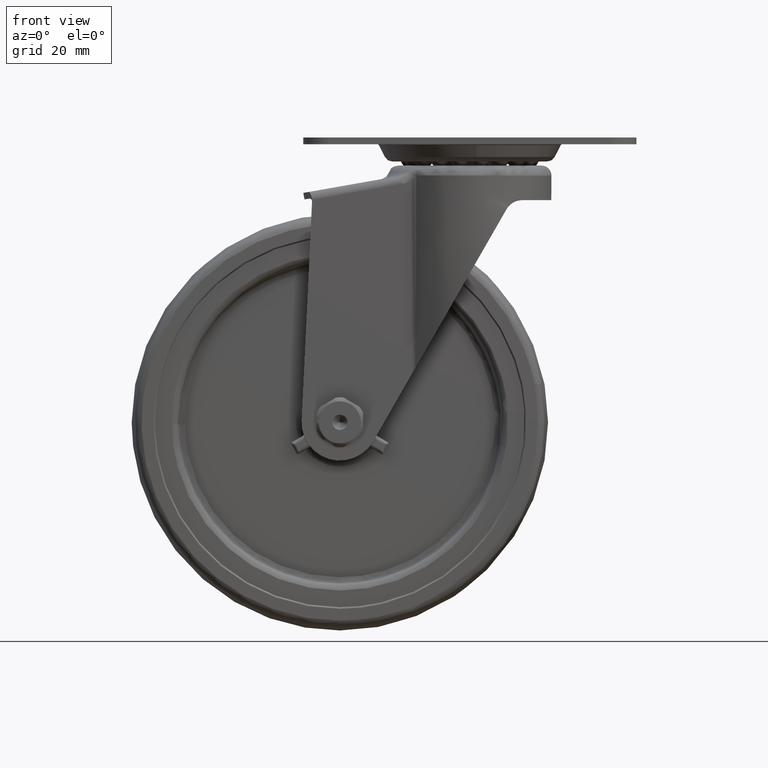
[diagram: clean part render]
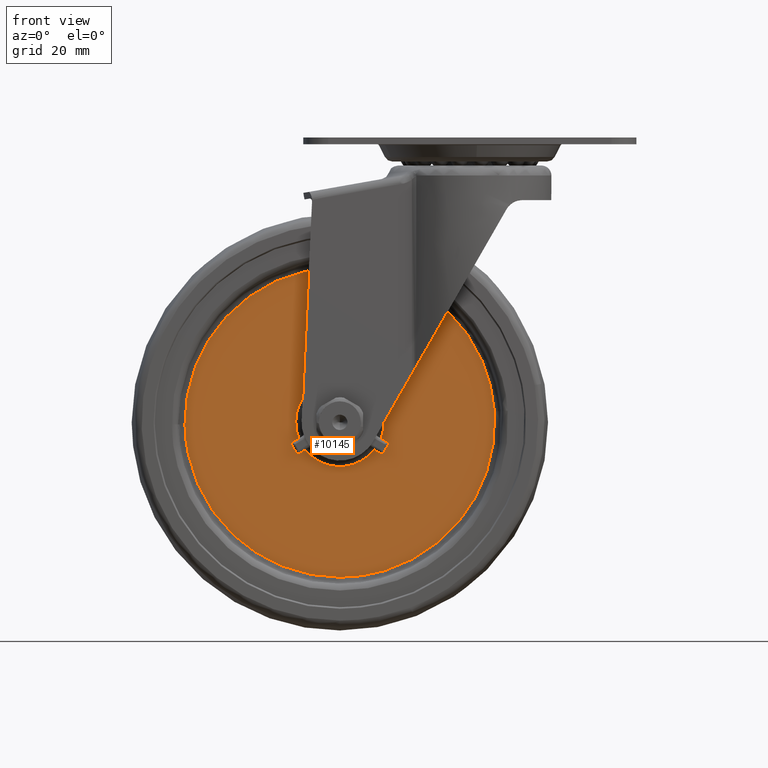
[diagram: same view with one face highlighted and labeled with its STEP entity id]
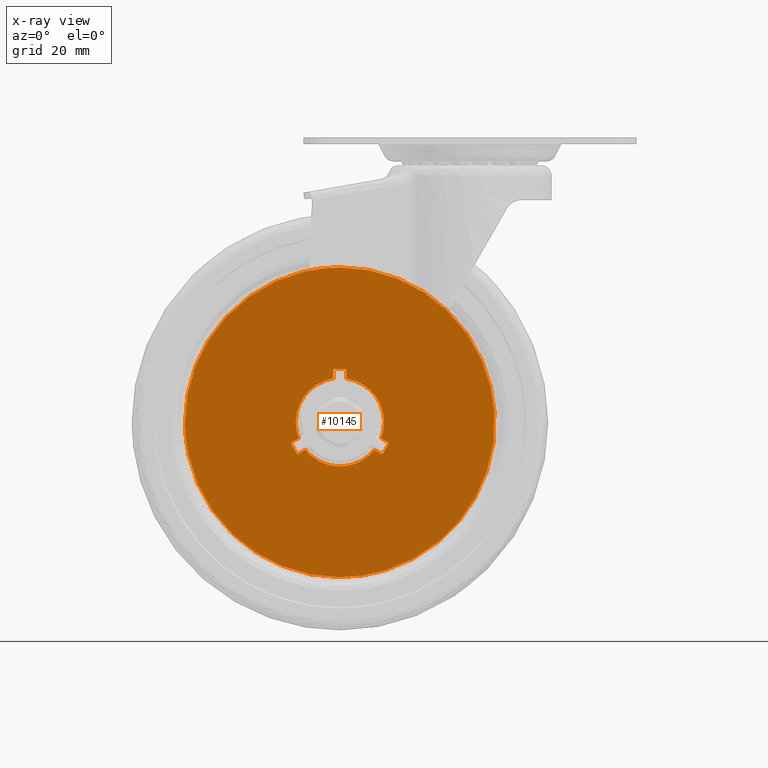
[diagram: x-ray of the same camera — body ghosted, the highlighted face saturated]
A machine part, front view. The second image highlights one B-rep face of the part: STEP entity #10145.
The next image is the same camera in x-ray: the body ghosted, the highlighted face saturated — about 0% of this face is hidden behind the body in this view.
In plain terms, the highlighted face is a freeform B-spline surface patch.
Its self-contained STEP definition (entity closure, byte-faithful):
#3296=CARTESIAN_POINT('',(7.386803875285509,-7.500000000000002,-80.257403797954339));
#3297=VERTEX_POINT('',#3296);
#3311=CARTESIAN_POINT('',(-39.0,-7.500000000000000,-130.0));
#3312=VERTEX_POINT('',#3311);
#3313=CARTESIAN_POINT('',(7.386803875285509,-7.500000000000002,-80.257403797954339));
#3314=CARTESIAN_POINT('',(7.500000000000000,-7.500000000000000,-81.876726110954721));
#3315=CARTESIAN_POINT('',(7.500000000000000,-7.500000000000000,-83.500000000000000));
#3316=CARTESIAN_POINT('',(7.500000000000000,-7.500000000000000,-130.0));
#3317=CARTESIAN_POINT('',(-39.0,-7.500000000000000,-130.0));
#3325=(BOUNDED_CURVE()B_SPLINE_CURVE(2,(#3313,#3314,#3315,#3316,#3317),.UNSPECIFIED.,.F.,.U.)B_SPLINE_CURVE_WITH_KNOTS((3,2,3),(0.237833686528698,0.250000000000000,0.500000000000000),.UNSPECIFIED.)CURVE()GEOMETRIC_REPRESENTATION_ITEM()RATIONAL_B_SPLINE_CURVE((0.972879876373453,0.985746277145188,1.0,0.707106781186547,1.0))REPRESENTATION_ITEM(''));
#3326=EDGE_CURVE('',#3297,#3312,#3325,.T.);
#3328=CARTESIAN_POINT('',(-85.496328603381443,-7.500000000000002,-84.084320856327707));
#3329=VERTEX_POINT('',#3328);
#3330=CARTESIAN_POINT('',(-39.0,-7.500000000000000,-130.0));
#3331=CARTESIAN_POINT('',(-84.919304738419228,-7.500000000000000,-130.0));
#3332=CARTESIAN_POINT('',(-85.496328603381443,-7.500000000000002,-84.084320856327707));
#3340=(BOUNDED_CURVE()B_SPLINE_CURVE(2,(#3330,#3331,#3332),.UNSPECIFIED.,.F.,.U.)B_SPLINE_CURVE_WITH_KNOTS((3,3),(0.500000000000000,0.747784295913032),.UNSPECIFIED.)CURVE()GEOMETRIC_REPRESENTATION_ITEM()RATIONAL_B_SPLINE_CURVE((1.0,0.709702639994429,0.994854295623996))REPRESENTATION_ITEM(''));
#3341=EDGE_CURVE('',#3312,#3329,#3340,.T.);
#3388=CARTESIAN_POINT('',(-39.0,-7.500000000000000,-37.000000000000007));
#3389=VERTEX_POINT('',#3388);
#3390=CARTESIAN_POINT('',(-85.496328603381443,-7.500000000000002,-84.084320856327707));
#3391=CARTESIAN_POINT('',(-85.499999999999986,-7.500000000000000,-83.792171962772613));
#3392=CARTESIAN_POINT('',(-85.499999999999986,-7.500000000000000,-83.500000000000000));
#3393=CARTESIAN_POINT('',(-85.499999999999986,-7.500000000000000,-37.000000000000007));
#3394=CARTESIAN_POINT('',(-39.0,-7.500000000000000,-37.000000000000007));
#3402=(BOUNDED_CURVE()B_SPLINE_CURVE(2,(#3390,#3391,#3392,#3393,#3394),.UNSPECIFIED.,.F.,.U.)B_SPLINE_CURVE_WITH_KNOTS((3,2,3),(0.747784295913032,0.750000000000000,1.0),.UNSPECIFIED.)CURVE()GEOMETRIC_REPRESENTATION_ITEM()RATIONAL_B_SPLINE_CURVE((0.994854295623996,0.997404141192119,1.0,0.707106781186547,1.0))REPRESENTATION_ITEM(''));
#3403=EDGE_CURVE('',#3329,#3389,#3402,.T.);
#3405=CARTESIAN_POINT('',(-39.0,-7.500000000000000,-37.000000000000007));
#3406=CARTESIAN_POINT('',(4.362963396271034,-7.499999999999999,-37.000000000000014));
#3407=CARTESIAN_POINT('',(7.386803875285509,-7.500000000000002,-80.257403797954339));
#3415=(BOUNDED_CURVE()B_SPLINE_CURVE(2,(#3405,#3406,#3407),.UNSPECIFIED.,.F.,.U.)B_SPLINE_CURVE_WITH_KNOTS((3,3),(0.0,0.237833686528698),.UNSPECIFIED.)CURVE()GEOMETRIC_REPRESENTATION_ITEM()RATIONAL_B_SPLINE_CURVE((1.0,0.721360504041360,0.972879876373453))REPRESENTATION_ITEM(''));
#3416=EDGE_CURVE('',#3389,#3297,#3415,.T.);
#8609=CARTESIAN_POINT('',(-51.351510978527600,-7.500000000000000,-88.321746702660391));
#8610=VERTEX_POINT('',#8609);
#8625=CARTESIAN_POINT('',(-53.360389195180801,-7.500000000000000,-89.481573928264410));
#8626=VERTEX_POINT('',#8625);
#8627=CARTESIAN_POINT('',(-51.351510978527600,-7.500000000000000,-88.321746702660391));
#8628=CARTESIAN_POINT('',(-53.360389195180801,-7.500000000000000,-89.481573928264410));
#8629=QUASI_UNIFORM_CURVE('',1,(#8627,#8628),.UNSPECIFIED.,.F.,.U.);
#8630=EDGE_CURVE('',#8610,#8626,#8629,.T.);
#8645=CARTESIAN_POINT('',(-49.351510552517198,-7.500000000000000,-91.785849020977096));
#8646=VERTEX_POINT('',#8645);
#8660=CARTESIAN_POINT('',(-51.360388581369300,-7.500000000000000,-92.945675832763200));
#8661=VERTEX_POINT('',#8660);
#8667=CARTESIAN_POINT('',(-51.360388581369300,-7.500000000000000,-92.945675832763200));
#8668=CARTESIAN_POINT('',(-49.351510552517198,-7.500000000000000,-91.785849020977096));
#8669=QUASI_UNIFORM_CURVE('',1,(#8667,#8668),.UNSPECIFIED.,.F.,.U.);
#8670=EDGE_CURVE('',#8661,#8646,#8669,.T.);
#8691=CARTESIAN_POINT('',(-52.017175400090899,-7.500000000000000,-92.803394251737899));
#8692=VERTEX_POINT('',#8691);
#8698=CARTESIAN_POINT('',(-52.017175400090942,-7.500000000000000,-92.803394251737927));
#8699=CARTESIAN_POINT('',(-51.753341215324937,-7.500000000000001,-93.172547247591794));
#8700=CARTESIAN_POINT('',(-51.360388581369307,-7.500000000000000,-92.945675832763186));
#8708=(BOUNDED_CURVE()B_SPLINE_CURVE(2,(#8698,#8699,#8700),.UNSPECIFIED.,.F.,.U.)CURVE()GEOMETRIC_REPRESENTATION_ITEM()QUASI_UNIFORM_CURVE()RATIONAL_B_SPLINE_CURVE((1.0,0.740531583698146,1.0))REPRESENTATION_ITEM(''));
#8709=EDGE_CURVE('',#8692,#8661,#8708,.T.);
#8730=CARTESIAN_POINT('',(-53.565562898933599,-7.500000000000000,-90.121508697963989));
#8731=VERTEX_POINT('',#8730);
#8737=CARTESIAN_POINT('',(-53.565562898933493,-7.500000000000000,-90.121508697963947));
#8738=CARTESIAN_POINT('',(-52.921749789127581,-7.500000000000000,-91.537726779640678));
#8739=CARTESIAN_POINT('',(-52.017175400090863,-7.500000000000000,-92.803394251737885));
#8747=(BOUNDED_CURVE()B_SPLINE_CURVE(2,(#8737,#8738,#8739),.UNSPECIFIED.,.F.,.U.)CURVE()GEOMETRIC_REPRESENTATION_ITEM()QUASI_UNIFORM_CURVE()RATIONAL_B_SPLINE_CURVE((1.0,0.995306360867000,1.0))REPRESENTATION_ITEM(''));
#8748=EDGE_CURVE('',#8731,#8692,#8747,.T.);
#8770=CARTESIAN_POINT('',(-53.360389195180773,-7.500000000000000,-89.481573928264467));
#8771=CARTESIAN_POINT('',(-53.753341632414255,-7.500000000000000,-89.708445289252239));
#8772=CARTESIAN_POINT('',(-53.565562898933607,-7.500000000000000,-90.121508697963989));
#8780=(BOUNDED_CURVE()B_SPLINE_CURVE(2,(#8770,#8771,#8772),.UNSPECIFIED.,.F.,.U.)CURVE()GEOMETRIC_REPRESENTATION_ITEM()QUASI_UNIFORM_CURVE()RATIONAL_B_SPLINE_CURVE((1.0,0.740531729109527,1.0))REPRESENTATION_ITEM(''));
#8781=EDGE_CURVE('',#8626,#8731,#8780,.T.);
#9003=CARTESIAN_POINT('',(-28.648489375618698,-7.500000000000000,-91.785848931196995));
#9004=VERTEX_POINT('',#9003);
#9016=CARTESIAN_POINT('',(-26.639610425918100,-7.500000000000000,-92.945674887125804));
#9017=VERTEX_POINT('',#9016);
#9018=CARTESIAN_POINT('',(-26.639610425918100,-7.500000000000000,-92.945674887125804));
#9019=CARTESIAN_POINT('',(-28.648489375618698,-7.500000000000000,-91.785848931196995));
#9020=QUASI_UNIFORM_CURVE('',1,(#9018,#9019),.UNSPECIFIED.,.F.,.U.);
#9021=EDGE_CURVE('',#9017,#9004,#9020,.T.);
#9036=CARTESIAN_POINT('',(-26.648488979652949,-7.500000000000000,-88.321746595533909));
#9037=VERTEX_POINT('',#9036);
#9054=CARTESIAN_POINT('',(-24.639610482229848,-7.500000000000000,-89.481572595731194));
#9055=VERTEX_POINT('',#9054);
#9061=CARTESIAN_POINT('',(-26.648488979652949,-7.500000000000000,-88.321746595533909));
#9062=CARTESIAN_POINT('',(-24.639610482229848,-7.500000000000000,-89.481572595731194));
#9063=QUASI_UNIFORM_CURVE('',1,(#9061,#9062),.UNSPECIFIED.,.F.,.U.);
#9064=EDGE_CURVE('',#9037,#9055,#9063,.T.);
#9083=CARTESIAN_POINT('',(-25.982823806716951,-7.500000000000000,-92.803393141914512));
#9084=VERTEX_POINT('',#9083);
#9092=CARTESIAN_POINT('',(-26.639610425918139,-7.500000000000000,-92.945674887125875));
#9093=CARTESIAN_POINT('',(-26.246657845294770,-7.499999999999999,-93.172545999755215));
#9094=CARTESIAN_POINT('',(-25.982823806716940,-7.500000000000000,-92.803393141914526));
#9102=(BOUNDED_CURVE()B_SPLINE_CURVE(2,(#9092,#9093,#9094),.UNSPECIFIED.,.F.,.U.)CURVE()GEOMETRIC_REPRESENTATION_ITEM()QUASI_UNIFORM_CURVE()RATIONAL_B_SPLINE_CURVE((1.0,0.740531729109475,1.0))REPRESENTATION_ITEM(''));
#9103=EDGE_CURVE('',#9017,#9084,#9102,.T.);
#9122=CARTESIAN_POINT('',(-24.434436536527549,-7.500000000000000,-90.121507456127503));
#9123=VERTEX_POINT('',#9122);
#9131=CARTESIAN_POINT('',(-25.982823806716880,-7.500000000000000,-92.803393141914569));
#9132=CARTESIAN_POINT('',(-25.078249525588909,-7.500000000000000,-91.537725592694784));
#9133=CARTESIAN_POINT('',(-24.434436536527429,-7.500000000000000,-90.121507456127574));
#9141=(BOUNDED_CURVE()B_SPLINE_CURVE(2,(#9131,#9132,#9133),.UNSPECIFIED.,.F.,.U.)CURVE()GEOMETRIC_REPRESENTATION_ITEM()QUASI_UNIFORM_CURVE()RATIONAL_B_SPLINE_CURVE((1.0,0.995306360867000,1.0))REPRESENTATION_ITEM(''));
#9142=EDGE_CURVE('',#9084,#9123,#9141,.T.);
#9164=CARTESIAN_POINT('',(-24.434436536527539,-7.500000000000000,-90.121507456127503));
#9165=CARTESIAN_POINT('',(-24.246657756617935,-7.500000000000001,-89.708443851806479));
#9166=CARTESIAN_POINT('',(-24.639610482229841,-7.500000000000000,-89.481572595731166));
#9174=(BOUNDED_CURVE()B_SPLINE_CURVE(2,(#9164,#9165,#9166),.UNSPECIFIED.,.F.,.U.)CURVE()GEOMETRIC_REPRESENTATION_ITEM()QUASI_UNIFORM_CURVE()RATIONAL_B_SPLINE_CURVE((1.0,0.740531583698138,1.0))REPRESENTATION_ITEM(''));
#9175=EDGE_CURVE('',#9123,#9055,#9174,.T.);
#9395=CARTESIAN_POINT('',(-41.000000467830148,-7.500000000000000,-70.392404383488994));
#9396=VERTEX_POINT('',#9395);
#9414=CARTESIAN_POINT('',(-41.000000936401200,-7.500000000000000,-68.072751571505592));
#9415=VERTEX_POINT('',#9414);
#9421=CARTESIAN_POINT('',(-41.000000467830148,-7.500000000000000,-70.392404383488994));
#9422=CARTESIAN_POINT('',(-41.000000936401200,-7.500000000000000,-68.072751571505592));
#9423=QUASI_UNIFORM_CURVE('',1,(#9421,#9422),.UNSPECIFIED.,.F.,.U.);
#9424=EDGE_CURVE('',#9396,#9415,#9423,.T.);
#9436=CARTESIAN_POINT('',(-36.999999645854103,-7.500000000000000,-70.392404366142699));
#9437=VERTEX_POINT('',#9436);
#9449=CARTESIAN_POINT('',(-37.000000378901397,-7.500000000000000,-68.072751342617693));
#9450=VERTEX_POINT('',#9449);
#9451=CARTESIAN_POINT('',(-37.000000378901397,-7.500000000000000,-68.072751342617693));
#9452=CARTESIAN_POINT('',(-36.999999645854103,-7.500000000000000,-70.392404366142699));
#9453=QUASI_UNIFORM_CURVE('',1,(#9451,#9452),.UNSPECIFIED.,.F.,.U.);
#9454=EDGE_CURVE('',#9450,#9437,#9453,.T.);
#9478=CARTESIAN_POINT('',(-37.451613294349848,-7.500000000000000,-67.575098160121499));
#9479=VERTEX_POINT('',#9478);
#9487=CARTESIAN_POINT('',(-37.000000378901397,-7.500000000000000,-68.072751342617693));
#9488=CARTESIAN_POINT('',(-37.000000378901412,-7.499999999999999,-67.619008724934488));
#9489=CARTESIAN_POINT('',(-37.451613294349848,-7.500000000000000,-67.575098160121499));
#9497=(BOUNDED_CURVE()B_SPLINE_CURVE(2,(#9487,#9488,#9489),.UNSPECIFIED.,.F.,.U.)CURVE()GEOMETRIC_REPRESENTATION_ITEM()QUASI_UNIFORM_CURVE()RATIONAL_B_SPLINE_CURVE((1.0,0.740531622924746,1.0))REPRESENTATION_ITEM(''));
#9498=EDGE_CURVE('',#9450,#9479,#9497,.T.);
#9517=CARTESIAN_POINT('',(-40.548388063381893,-7.500000000000000,-67.575098292134498));
#9518=VERTEX_POINT('',#9517);
#9526=CARTESIAN_POINT('',(-37.451613294349841,-7.500000000000000,-67.575098160121499));
#9527=CARTESIAN_POINT('',(-39.000000685283730,-7.500000000000000,-67.424547627664552));
#9528=CARTESIAN_POINT('',(-40.548388063381893,-7.500000000000000,-67.575098292134541));
#9536=(BOUNDED_CURVE()B_SPLINE_CURVE(2,(#9526,#9527,#9528),.UNSPECIFIED.,.F.,.U.)CURVE()GEOMETRIC_REPRESENTATION_ITEM()QUASI_UNIFORM_CURVE()RATIONAL_B_SPLINE_CURVE((1.0,0.995306360867000,1.0))REPRESENTATION_ITEM(''));
#9537=EDGE_CURVE('',#9479,#9518,#9536,.T.);
#9559=CARTESIAN_POINT('',(-40.548388063381893,-7.500000000000000,-67.575098292134513));
#9560=CARTESIAN_POINT('',(-41.000001028057476,-7.500000000000002,-67.619008900601685));
#9561=CARTESIAN_POINT('',(-41.000000936401193,-7.500000000000000,-68.072751571505592));
#9569=(BOUNDED_CURVE()B_SPLINE_CURVE(2,(#9559,#9560,#9561),.UNSPECIFIED.,.F.,.U.)CURVE()GEOMETRIC_REPRESENTATION_ITEM()QUASI_UNIFORM_CURVE()RATIONAL_B_SPLINE_CURVE((1.0,0.740531583698129,1.0))REPRESENTATION_ITEM(''));
#9570=EDGE_CURVE('',#9518,#9415,#9569,.T.);
#9956=CARTESIAN_POINT('',(-36.999999645854089,-7.500000000000000,-70.392404366142671));
#9957=CARTESIAN_POINT('',(-30.702368172515563,-7.499999999999999,-71.353317834088202));
#9958=CARTESIAN_POINT('',(-27.517108470524121,-7.500000000000000,-76.870349417986603));
#9959=CARTESIAN_POINT('',(-24.331848768532680,-7.499999999999999,-82.387381001885018));
#9960=CARTESIAN_POINT('',(-26.648488979652878,-7.500000000000000,-88.321746595533938));
#9968=(BOUNDED_CURVE()B_SPLINE_CURVE(2,(#9956,#9957,#9958,#9959,#9960),.UNSPECIFIED.,.F.,.U.)B_SPLINE_CURVE_WITH_KNOTS((3,2,3),(0.0,0.500000000000000,1.0),.UNSPECIFIED.)CURVE()GEOMETRIC_REPRESENTATION_ITEM()RATIONAL_B_SPLINE_CURVE((1.0,0.901362420827887,1.0,0.901362420827887,1.0))REPRESENTATION_ITEM(''));
#9969=EDGE_CURVE('',#9437,#9037,#9968,.T.);
#10086=CARTESIAN_POINT('',(-90.141231890517219,-7.500000000000000,-134.645349819747990));
#10087=CARTESIAN_POINT('',(-90.141231890517219,-7.500000000000000,-32.354647685797673));
#10088=CARTESIAN_POINT('',(12.139600970096540,-7.500000000000000,-134.645349819747990));
#10089=CARTESIAN_POINT('',(12.139600970096540,-7.500000000000000,-32.354647685797673));
#10090=B_SPLINE_SURFACE_WITH_KNOTS('',1,1,((#10086,#10088),(#10087,#10089)),.UNSPECIFIED.,.F.,.F.,.U.,(2,2),(2,2),(0.0,102.290702133950300),(0.0,102.280832860613800),.UNSPECIFIED.);
#10091=ORIENTED_EDGE('',*,*,#3403,.F.);
#10092=ORIENTED_EDGE('',*,*,#3341,.F.);
#10093=ORIENTED_EDGE('',*,*,#3326,.F.);
#10094=ORIENTED_EDGE('',*,*,#3416,.F.);
#10095=EDGE_LOOP('',(#10091,#10092,#10093,#10094));
#10096=FACE_OUTER_BOUND('',#10095,.T.);
#10097=CARTESIAN_POINT('',(-28.648489375618631,-7.500000000000000,-91.785848931197052));
#10098=CARTESIAN_POINT('',(-32.629480586367379,-7.500000000000000,-96.759301036807798));
#10099=CARTESIAN_POINT('',(-38.999999942500182,-7.500000000000000,-96.759301064433970));
#10100=CARTESIAN_POINT('',(-45.370519298632978,-7.500000000000000,-96.759301092060127));
#10101=CARTESIAN_POINT('',(-49.351510552517126,-7.500000000000000,-91.785849020977039));
#10109=(BOUNDED_CURVE()B_SPLINE_CURVE(2,(#10097,#10098,#10099,#10100,#10101),.UNSPECIFIED.,.F.,.U.)B_SPLINE_CURVE_WITH_KNOTS((3,2,3),(0.0,0.500000000000000,1.0),.UNSPECIFIED.)CURVE()GEOMETRIC_REPRESENTATION_ITEM()RATIONAL_B_SPLINE_CURVE((1.0,0.901362420827888,1.0,0.901362420827888,1.0))REPRESENTATION_ITEM(''));
#10110=EDGE_CURVE('',#9004,#8646,#10109,.T.);
#10111=ORIENTED_EDGE('',*,*,#10110,.T.);
#10112=ORIENTED_EDGE('',*,*,#8670,.F.);
#10113=ORIENTED_EDGE('',*,*,#8709,.F.);
#10114=ORIENTED_EDGE('',*,*,#8748,.F.);
#10115=ORIENTED_EDGE('',*,*,#8781,.F.);
#10116=ORIENTED_EDGE('',*,*,#8630,.F.);
#10117=CARTESIAN_POINT('',(-51.351510978527443,-7.500000000000000,-88.321746702660334));
#10118=CARTESIAN_POINT('',(-53.668151241117201,-7.500000000000000,-82.387381129104000));
#10119=CARTESIAN_POINT('',(-50.482891586975832,-7.500000000000000,-76.870349517579442));
#10120=CARTESIAN_POINT('',(-47.297631932834470,-7.500000000000000,-71.353317906054855));
#10121=CARTESIAN_POINT('',(-41.000000467830148,-7.500000000000000,-70.392404383488994));
#10129=(BOUNDED_CURVE()B_SPLINE_CURVE(2,(#10117,#10118,#10119,#10120,#10121),.UNSPECIFIED.,.F.,.U.)B_SPLINE_CURVE_WITH_KNOTS((3,2,3),(0.0,0.500000000000000,1.0),.UNSPECIFIED.)CURVE()GEOMETRIC_REPRESENTATION_ITEM()RATIONAL_B_SPLINE_CURVE((1.0,0.901362420827889,1.0,0.901362420827889,1.0))REPRESENTATION_ITEM(''));
#10130=EDGE_CURVE('',#8610,#9396,#10129,.T.);
#10131=ORIENTED_EDGE('',*,*,#10130,.T.);
#10132=ORIENTED_EDGE('',*,*,#9424,.T.);
#10133=ORIENTED_EDGE('',*,*,#9570,.F.);
#10134=ORIENTED_EDGE('',*,*,#9537,.F.);
#10135=ORIENTED_EDGE('',*,*,#9498,.F.);
#10136=ORIENTED_EDGE('',*,*,#9454,.T.);
#10137=ORIENTED_EDGE('',*,*,#9969,.T.);
#10138=ORIENTED_EDGE('',*,*,#9064,.T.);
#10139=ORIENTED_EDGE('',*,*,#9175,.F.);
#10140=ORIENTED_EDGE('',*,*,#9142,.F.);
#10141=ORIENTED_EDGE('',*,*,#9103,.F.);
#10142=ORIENTED_EDGE('',*,*,#9021,.T.);
#10143=EDGE_LOOP('',(#10111,#10112,#10113,#10114,#10115,#10116,#10131,#10132,#10133,#10134,#10135,#10136,#10137,#10138,#10139,#10140,#10141,#10142));
#10144=FACE_BOUND('',#10143,.T.);
#10145=ADVANCED_FACE('',(#10096,#10144),#10090,.F.);